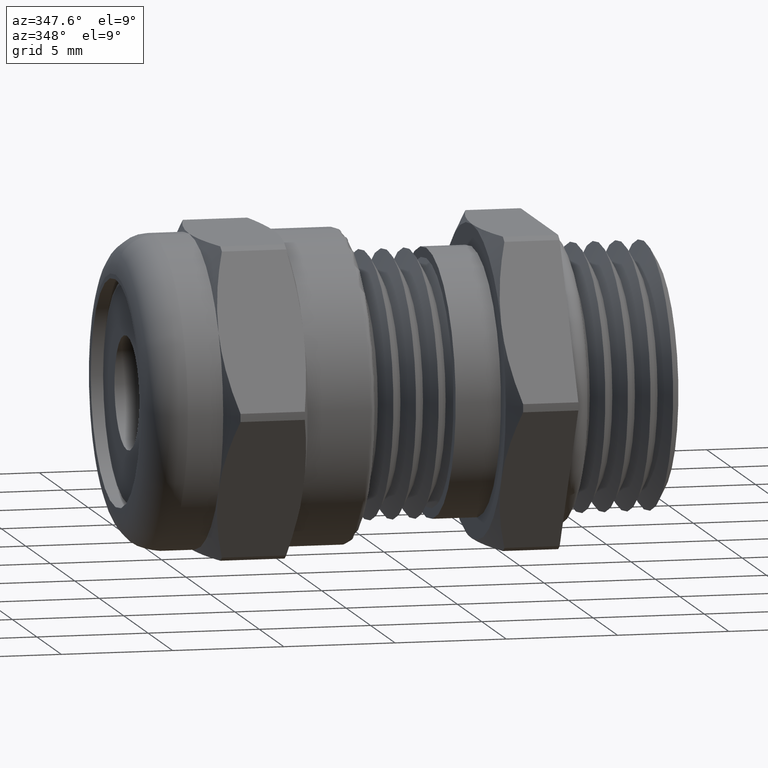
[diagram: clean part render]
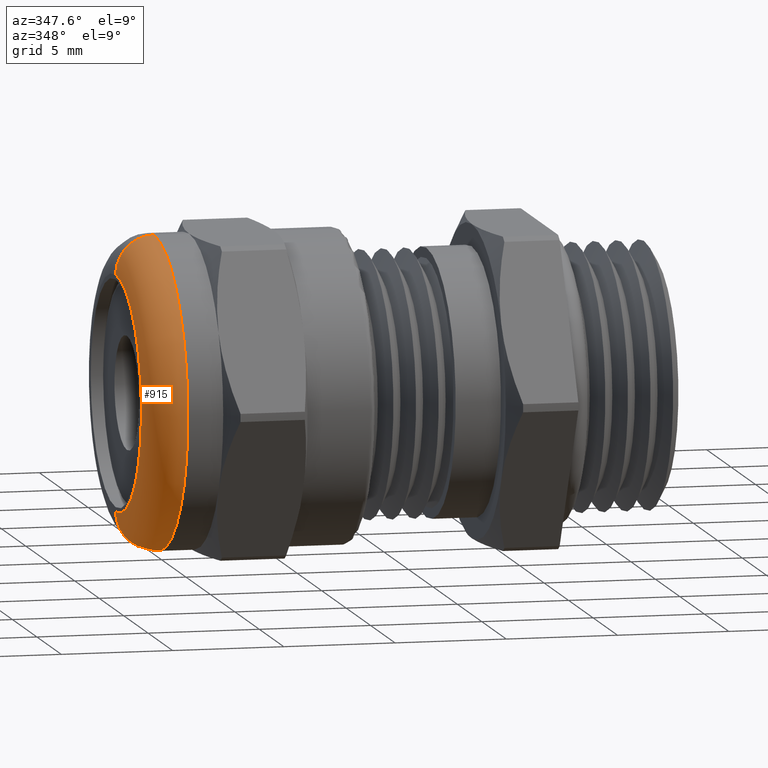
[diagram: same view with one face highlighted and labeled with its STEP entity id]
A machine part, auxiliary view. The second image highlights one B-rep face of the part: STEP entity #915.
In plain terms, the highlighted toroidal blend (fillet) surface has major radius 5.2705 mm and minor (blend) radius 1.7145 mm.
Its self-contained STEP definition (entity closure, byte-faithful):
#759 = EDGE_CURVE ( 'NONE', #1162, #1161, #2765, .T. ) ;
#801 = EDGE_CURVE ( 'NONE', #1133, #1150, #2825, .T. ) ;
#915 = ADVANCED_FACE ( 'NONE', ( #2954 ), #2949, .T. ) ;
#916 = EDGE_LOOP ( 'NONE', ( #967, #968, #969, #970 ) ) ;
#967 = ORIENTED_EDGE ( 'NONE', *, *, #1132, .F. ) ;
#968 = ORIENTED_EDGE ( 'NONE', *, *, #759, .F. ) ;
#969 = ORIENTED_EDGE ( 'NONE', *, *, #1153, .T. ) ;
#970 = ORIENTED_EDGE ( 'NONE', *, *, #801, .F. ) ;
#1132 = EDGE_CURVE ( 'NONE', #1161, #1133, #3273, .T. ) ;
#1133 = VERTEX_POINT ( 'NONE', #3268 ) ;
#1150 = VERTEX_POINT ( 'NONE', #3306 ) ;
#1153 = EDGE_CURVE ( 'NONE', #1162, #1150, #3305, .T. ) ;
#1161 = VERTEX_POINT ( 'NONE', #3289 ) ;
#1162 = VERTEX_POINT ( 'NONE', #3288 ) ;
#2707 = CARTESIAN_POINT ( 'NONE',  ( -0.4750000000000000300, 0.0000000000000000000, 0.0000000000000000000 ) ) ;
#2762 = DIRECTION ( 'NONE',  ( 0.0000000000000000000, 0.0000000000000000000, -1.000000000000000000 ) ) ;
#2763 = DIRECTION ( 'NONE',  ( -1.000000000000000000, 0.0000000000000000000, 0.0000000000000000000 ) ) ;
#2764 = AXIS2_PLACEMENT_3D ( 'NONE', #2707, #2763, #2762 ) ;
#2765 = CIRCLE ( 'NONE', #2764, 0.2075000000000000200 ) ;
#2767 = CARTESIAN_POINT ( 'NONE',  ( -0.4074999999999999700, 0.0000000000000000000, 0.0000000000000000000 ) ) ;
#2822 = DIRECTION ( 'NONE',  ( 0.0000000000000000000, 0.0000000000000000000, -1.000000000000000000 ) ) ;
#2823 = DIRECTION ( 'NONE',  ( 1.000000000000000000, 0.0000000000000000000, 0.0000000000000000000 ) ) ;
#2824 = AXIS2_PLACEMENT_3D ( 'NONE', #2767, #2823, #2822 ) ;
#2825 = CIRCLE ( 'NONE', #2824, 0.2750000000000000200 ) ;
#2945 = DIRECTION ( 'NONE',  ( 0.0000000000000000000, 0.0000000000000000000, -1.000000000000000000 ) ) ;
#2946 = DIRECTION ( 'NONE',  ( 1.000000000000000000, 0.0000000000000000000, 0.0000000000000000000 ) ) ;
#2947 = CARTESIAN_POINT ( 'NONE',  ( -0.4074999999999999700, 0.0000000000000000000, 0.0000000000000000000 ) ) ;
#2948 = AXIS2_PLACEMENT_3D ( 'NONE', #2947, #2946, #2945 ) ;
#2949 = TOROIDAL_SURFACE ( 'NONE', #2948, 0.2075000000000000200, 0.06750000000000000400 ) ;
#2954 = FACE_OUTER_BOUND ( 'NONE', #916, .T. ) ;
#3268 = CARTESIAN_POINT ( 'NONE',  ( -0.4074999999999999700, 0.0000000000000000000, 0.2750000000000000200 ) ) ;
#3269 = DIRECTION ( 'NONE',  ( 0.0000000000000000000, 1.224646799147353700E-016, 1.000000000000000000 ) ) ;
#3270 = DIRECTION ( 'NONE',  ( 0.0000000000000000000, 1.000000000000000000, -1.224646799147353200E-016 ) ) ;
#3271 = CARTESIAN_POINT ( 'NONE',  ( -0.4074999999999999700, 2.541142108230758100E-017, 0.2075000000000000200 ) ) ;
#3272 = AXIS2_PLACEMENT_3D ( 'NONE', #3271, #3270, #3269 ) ;
#3273 = CIRCLE ( 'NONE', #3272, 0.06749999999999999100 ) ;
#3288 = CARTESIAN_POINT ( 'NONE',  ( -0.4750000000000000300, 0.0000000000000000000, -0.2075000000000000200 ) ) ;
#3289 = CARTESIAN_POINT ( 'NONE',  ( -0.4750000000000000300, 2.954460402942989500E-017, 0.2075000000000000200 ) ) ;
#3301 = DIRECTION ( 'NONE',  ( 0.0000000000000000000, 0.0000000000000000000, -1.000000000000000000 ) ) ;
#3302 = DIRECTION ( 'NONE',  ( 0.0000000000000000000, -1.000000000000000000, 0.0000000000000000000 ) ) ;
#3303 = CARTESIAN_POINT ( 'NONE',  ( -0.4074999999999999700, 0.0000000000000000000, -0.2075000000000000200 ) ) ;
#3304 = AXIS2_PLACEMENT_3D ( 'NONE', #3303, #3302, #3301 ) ;
#3305 = CIRCLE ( 'NONE', #3304, 0.06749999999999999100 ) ;
#3306 = CARTESIAN_POINT ( 'NONE',  ( -0.4074999999999999700, 3.367778697655221300E-017, -0.2750000000000000200 ) ) ;